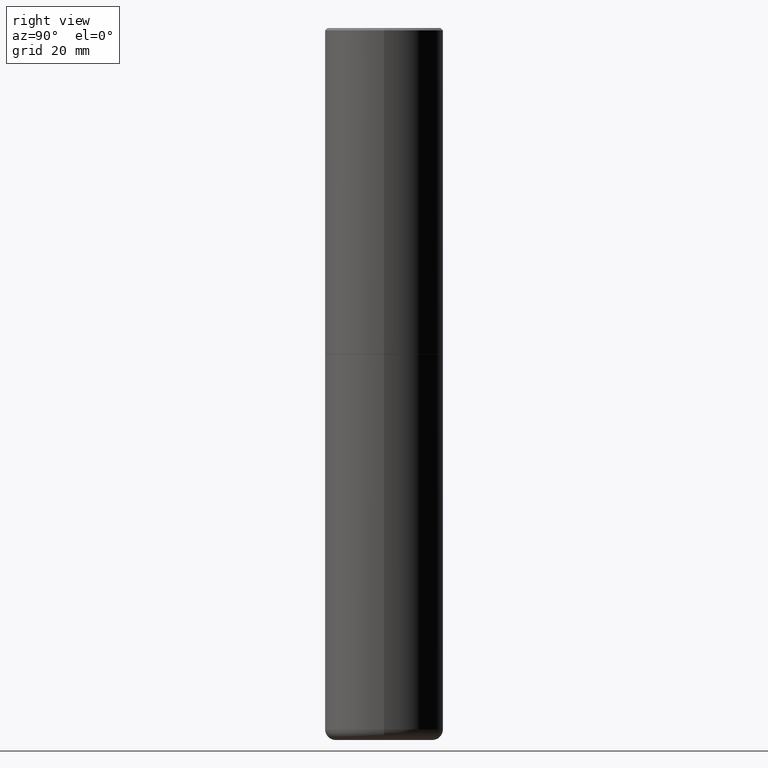
[diagram: clean part render]
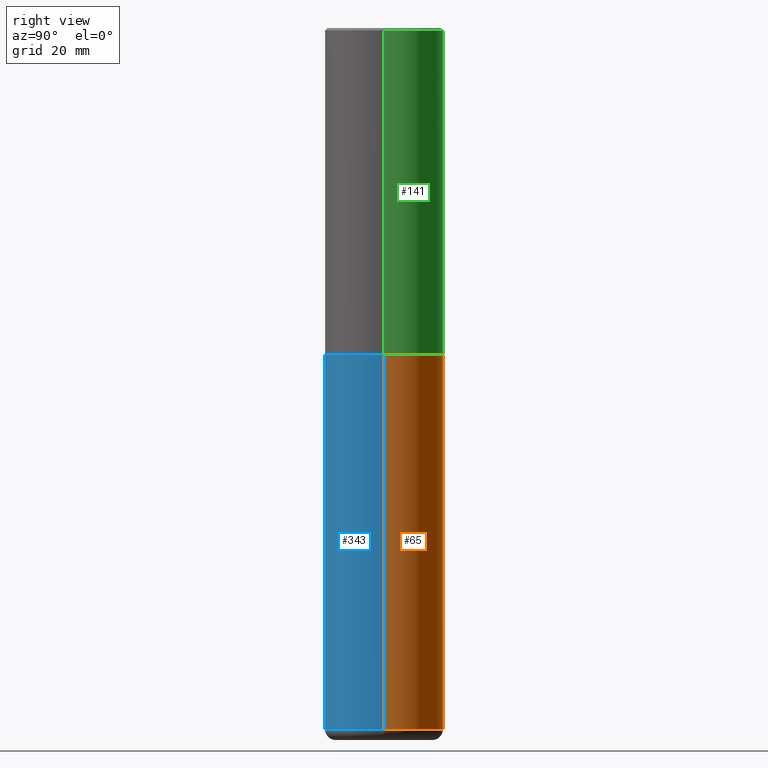
[diagram: same view with three faces highlighted in distinct colors, each labeled with its STEP entity id]
A machine part, right view with three faces highlighted in distinct colors.
Their STEP definitions:

[orange] entity #65 — the highlighted cylindrical surface (partial cylindrical patch) has radius 12.7 mm, axis along (-0, 0, 1).
#5 = VERTEX_POINT ( 'NONE', #353 ) ;
#9 = ORIENTED_EDGE ( 'NONE', *, *, #119, .F. ) ;
#12 = VERTEX_POINT ( 'NONE', #338 ) ;
#18 = CARTESIAN_POINT ( 'NONE',  ( 0.000000000000000000, 0.000000000000000000, 0.000000000000000000 ) ) ;
#20 = EDGE_CURVE ( 'NONE', #62, #12, #445, .T. ) ;
#25 = DIRECTION ( 'NONE',  ( -2.445468806185136877E-29, 3.491481338843145188E-15, 1.000000000000000000 ) ) ;
#33 = DIRECTION ( 'NONE',  ( 1.000000000000000000, -6.982962677686266711E-15, 0.000000000000000000 ) ) ;
#39 = ORIENTED_EDGE ( 'NONE', *, *, #20, .F. ) ;
#44 = CARTESIAN_POINT ( 'NONE',  ( 1.445272902499044541E-28, -2.063466667760496652E-14, -5.910003426924223646 ) ) ;
#62 = VERTEX_POINT ( 'NONE', #241 ) ;
#65 = ADVANCED_FACE ( 'NONE', ( #156 ), #471, .T. ) ;
#102 = VECTOR ( 'NONE', #25, 39.37007874015748143 ) ;
#119 = EDGE_CURVE ( 'NONE', #5, #62, #450, .T. ) ;
#126 = DIRECTION ( 'NONE',  ( 1.000000000000000000, -6.982962677686269077E-15, 0.000000000000000000 ) ) ;
#151 = AXIS2_PLACEMENT_3D ( 'NONE', #44, #323, #126 ) ;
#156 = FACE_OUTER_BOUND ( 'NONE', #315, .T. ) ;
#214 = DIRECTION ( 'NONE',  ( -2.445468806185136597E-29, 3.491481338843145583E-15, 1.000000000000000000 ) ) ;
#233 = CARTESIAN_POINT ( 'NONE',  ( 6.725039217009125641E-29, -9.601573681818653015E-15, -2.750000000000000444 ) ) ;
#241 = CARTESIAN_POINT ( 'NONE',  ( 0.5000000000000000000, -1.309305502066178637E-14, -2.750000000000000444 ) ) ;
#244 = ORIENTED_EDGE ( 'NONE', *, *, #267, .T. ) ;
#249 = CARTESIAN_POINT ( 'NONE',  ( -0.5000000000000001110, -1.156540650091130647E-14, -5.910003426924223646 ) ) ;
#255 = AXIS2_PLACEMENT_3D ( 'NONE', #233, #342, #33 ) ;
#260 = CARTESIAN_POINT ( 'NONE',  ( 0.5000000000000000000, -3.491481338843133355E-15, 2.438088387897967896E-29 ) ) ;
#267 = EDGE_CURVE ( 'NONE', #5, #279, #436, .T. ) ;
#268 = CARTESIAN_POINT ( 'NONE',  ( -0.5000000000000000000, 3.552713678800500929E-15, -2.459467545127452891E-29 ) ) ;
#279 = VERTEX_POINT ( 'NONE', #249 ) ;
#315 = EDGE_LOOP ( 'NONE', ( #244, #347, #39, #9 ) ) ;
#323 = DIRECTION ( 'NONE',  ( -2.445468806185136597E-29, 3.491481338843145583E-15, 1.000000000000000000 ) ) ;
#338 = CARTESIAN_POINT ( 'NONE',  ( -0.5000000000000000000, -1.156540650091130805E-14, -2.750000000000000444 ) ) ;
#342 = DIRECTION ( 'NONE',  ( -2.445468806185136597E-29, 3.491481338843145583E-15, 1.000000000000000000 ) ) ;
#347 = ORIENTED_EDGE ( 'NONE', *, *, #369, .T. ) ;
#353 = CARTESIAN_POINT ( 'NONE',  ( 0.5000000000000001110, -2.412614801644810303E-14, -5.910003426924223646 ) ) ;
#366 = DIRECTION ( 'NONE',  ( -2.445468806185136877E-29, 3.491481338843145188E-15, 1.000000000000000000 ) ) ;
#369 = EDGE_CURVE ( 'NONE', #279, #12, #458, .T. ) ;
#408 = DIRECTION ( 'NONE',  ( 1.000000000000000000, -6.982962677686266711E-15, 4.876176775795935793E-29 ) ) ;
#417 = VECTOR ( 'NONE', #366, 39.37007874015748143 ) ;
#436 = CIRCLE ( 'NONE', #151, 0.5000000000000001110 ) ;
#445 = CIRCLE ( 'NONE', #255, 0.5000000000000000000 ) ;
#450 = LINE ( 'NONE', #260, #417 ) ;
#454 = AXIS2_PLACEMENT_3D ( 'NONE', #18, #214, #408 ) ;
#458 = LINE ( 'NONE', #268, #102 ) ;
#471 = CYLINDRICAL_SURFACE ( 'NONE', #454, 0.5000000000000000000 ) ;

[blue] entity #343 — the highlighted cylindrical surface (partial cylindrical patch) has radius 12.7 mm, axis along (-0, 0, 1).
#5 = VERTEX_POINT ( 'NONE', #353 ) ;
#12 = VERTEX_POINT ( 'NONE', #338 ) ;
#25 = DIRECTION ( 'NONE',  ( -2.445468806185136877E-29, 3.491481338843145188E-15, 1.000000000000000000 ) ) ;
#32 = CIRCLE ( 'NONE', #456, 0.5000000000000001110 ) ;
#46 = CARTESIAN_POINT ( 'NONE',  ( 0.000000000000000000, 0.000000000000000000, 0.000000000000000000 ) ) ;
#62 = VERTEX_POINT ( 'NONE', #241 ) ;
#82 = DIRECTION ( 'NONE',  ( 1.000000000000000000, -6.982962677686269077E-15, 0.000000000000000000 ) ) ;
#102 = VECTOR ( 'NONE', #25, 39.37007874015748143 ) ;
#119 = EDGE_CURVE ( 'NONE', #5, #62, #450, .T. ) ;
#129 = DIRECTION ( 'NONE',  ( -2.445468806185136597E-29, 3.491481338843145583E-15, 1.000000000000000000 ) ) ;
#130 = ORIENTED_EDGE ( 'NONE', *, *, #369, .F. ) ;
#142 = CIRCLE ( 'NONE', #461, 0.5000000000000000000 ) ;
#157 = EDGE_LOOP ( 'NONE', ( #130, #469, #196, #444 ) ) ;
#196 = ORIENTED_EDGE ( 'NONE', *, *, #119, .T. ) ;
#205 = CARTESIAN_POINT ( 'NONE',  ( 6.725039217009125641E-29, -9.601573681818653015E-15, -2.750000000000000444 ) ) ;
#206 = CARTESIAN_POINT ( 'NONE',  ( 1.445272902499044541E-28, -2.063466667760496652E-14, -5.910003426924223646 ) ) ;
#210 = DIRECTION ( 'NONE',  ( -2.445468806185136597E-29, 3.491481338843145583E-15, 1.000000000000000000 ) ) ;
#230 = DIRECTION ( 'NONE',  ( 1.000000000000000000, -6.982962677686266711E-15, 4.876176775795935793E-29 ) ) ;
#241 = CARTESIAN_POINT ( 'NONE',  ( 0.5000000000000000000, -1.309305502066178637E-14, -2.750000000000000444 ) ) ;
#247 = CYLINDRICAL_SURFACE ( 'NONE', #328, 0.5000000000000000000 ) ;
#249 = CARTESIAN_POINT ( 'NONE',  ( -0.5000000000000001110, -1.156540650091130647E-14, -5.910003426924223646 ) ) ;
#260 = CARTESIAN_POINT ( 'NONE',  ( 0.5000000000000000000, -3.491481338843133355E-15, 2.438088387897967896E-29 ) ) ;
#268 = CARTESIAN_POINT ( 'NONE',  ( -0.5000000000000000000, 3.552713678800500929E-15, -2.459467545127452891E-29 ) ) ;
#279 = VERTEX_POINT ( 'NONE', #249 ) ;
#280 = DIRECTION ( 'NONE',  ( -2.445468806185136597E-29, 3.491481338843145583E-15, 1.000000000000000000 ) ) ;
#295 = EDGE_CURVE ( 'NONE', #279, #5, #32, .T. ) ;
#328 = AXIS2_PLACEMENT_3D ( 'NONE', #46, #210, #230 ) ;
#338 = CARTESIAN_POINT ( 'NONE',  ( -0.5000000000000000000, -1.156540650091130805E-14, -2.750000000000000444 ) ) ;
#341 = EDGE_CURVE ( 'NONE', #12, #62, #142, .T. ) ;
#343 = ADVANCED_FACE ( 'NONE', ( #438 ), #247, .T. ) ;
#353 = CARTESIAN_POINT ( 'NONE',  ( 0.5000000000000001110, -2.412614801644810303E-14, -5.910003426924223646 ) ) ;
#366 = DIRECTION ( 'NONE',  ( -2.445468806185136877E-29, 3.491481338843145188E-15, 1.000000000000000000 ) ) ;
#369 = EDGE_CURVE ( 'NONE', #279, #12, #458, .T. ) ;
#417 = VECTOR ( 'NONE', #366, 39.37007874015748143 ) ;
#438 = FACE_OUTER_BOUND ( 'NONE', #157, .T. ) ;
#444 = ORIENTED_EDGE ( 'NONE', *, *, #341, .F. ) ;
#450 = LINE ( 'NONE', #260, #417 ) ;
#456 = AXIS2_PLACEMENT_3D ( 'NONE', #206, #129, #82 ) ;
#458 = LINE ( 'NONE', #268, #102 ) ;
#461 = AXIS2_PLACEMENT_3D ( 'NONE', #205, #280, #470 ) ;
#469 = ORIENTED_EDGE ( 'NONE', *, *, #295, .T. ) ;
#470 = DIRECTION ( 'NONE',  ( 1.000000000000000000, -6.982962677686266711E-15, 0.000000000000000000 ) ) ;

[green] entity #141 — the highlighted cylindrical surface (partial cylindrical patch) has radius 12.7 mm, axis along (-0, 0, 1).
#55 = DIRECTION ( 'NONE',  ( -2.445468806185136597E-29, 3.491481338843145583E-15, 1.000000000000000000 ) ) ;
#58 = CARTESIAN_POINT ( 'NONE',  ( 0.4999999999999995004, -3.491481338843130200E-15, 2.438088387897965374E-29 ) ) ;
#59 = CARTESIAN_POINT ( 'NONE',  ( 0.000000000000000000, 0.000000000000000000, 0.000000000000000000 ) ) ;
#74 = CIRCLE ( 'NONE', #432, 0.4999999999999990563 ) ;
#77 = CIRCLE ( 'NONE', #293, 0.5000000000000000000 ) ;
#79 = ORIENTED_EDGE ( 'NONE', *, *, #287, .T. ) ;
#85 = ORIENTED_EDGE ( 'NONE', *, *, #335, .T. ) ;
#99 = DIRECTION ( 'NONE',  ( 1.000000000000000000, -6.982962677686267499E-15, 4.876176775795935793E-29 ) ) ;
#112 = EDGE_LOOP ( 'NONE', ( #79, #85, #282, #422 ) ) ;
#131 = CYLINDRICAL_SURFACE ( 'NONE', #305, 0.4999999999999995004 ) ;
#141 = ADVANCED_FACE ( 'NONE', ( #322 ), #131, .T. ) ;
#164 = DIRECTION ( 'NONE',  ( -2.445468806185136877E-29, 3.491481338843145188E-15, 1.000000000000000000 ) ) ;
#192 = VECTOR ( 'NONE', #283, 39.37007874015748143 ) ;
#200 = EDGE_CURVE ( 'NONE', #437, #310, #74, .T. ) ;
#202 = CARTESIAN_POINT ( 'NONE',  ( -0.5000000000000000000, -1.281242234827831779E-15, -2.749000000000000554 ) ) ;
#215 = DIRECTION ( 'NONE',  ( 1.000000000000000000, -6.982962677686266711E-15, 0.000000000000000000 ) ) ;
#238 = DIRECTION ( 'NONE',  ( -2.445468806185136597E-29, 3.491481338843145583E-15, 1.000000000000000000 ) ) ;
#253 = CARTESIAN_POINT ( 'NONE',  ( 4.890937612370318701E-31, -6.982962677686356937E-17, -0.02000000000000018777 ) ) ;
#282 = ORIENTED_EDGE ( 'NONE', *, *, #200, .F. ) ;
#283 = DIRECTION ( 'NONE',  ( -2.445468806185136877E-29, 3.491481338843145188E-15, 1.000000000000000000 ) ) ;
#287 = EDGE_CURVE ( 'NONE', #427, #466, #77, .T. ) ;
#293 = AXIS2_PLACEMENT_3D ( 'NONE', #473, #238, #477 ) ;
#304 = CARTESIAN_POINT ( 'NONE',  ( 0.4999999999999990563, -3.500078625662622374E-15, -0.02000000000000018777 ) ) ;
#305 = AXIS2_PLACEMENT_3D ( 'NONE', #59, #446, #99 ) ;
#310 = VERTEX_POINT ( 'NONE', #465 ) ;
#322 = FACE_OUTER_BOUND ( 'NONE', #112, .T. ) ;
#335 = EDGE_CURVE ( 'NONE', #466, #310, #399, .T. ) ;
#340 = CARTESIAN_POINT ( 'NONE',  ( 0.5000000000000000000, -1.308956353932294336E-14, -2.749000000000000554 ) ) ;
#351 = CARTESIAN_POINT ( 'NONE',  ( -0.4999999999999995004, 3.552713678800497379E-15, -2.459467545127450649E-29 ) ) ;
#368 = VECTOR ( 'NONE', #164, 39.37007874015748143 ) ;
#399 = LINE ( 'NONE', #351, #368 ) ;
#413 = LINE ( 'NONE', #58, #192 ) ;
#422 = ORIENTED_EDGE ( 'NONE', *, *, #443, .F. ) ;
#427 = VERTEX_POINT ( 'NONE', #340 ) ;
#432 = AXIS2_PLACEMENT_3D ( 'NONE', #253, #55, #215 ) ;
#437 = VERTEX_POINT ( 'NONE', #304 ) ;
#443 = EDGE_CURVE ( 'NONE', #427, #437, #413, .T. ) ;
#446 = DIRECTION ( 'NONE',  ( -2.445468806185136597E-29, 3.491481338843145583E-15, 1.000000000000000000 ) ) ;
#465 = CARTESIAN_POINT ( 'NONE',  ( -0.4999999999999990563, 3.421651712066263352E-15, -0.02000000000000018777 ) ) ;
#466 = VERTEX_POINT ( 'NONE', #202 ) ;
#473 = CARTESIAN_POINT ( 'NONE',  ( 6.722593748202942280E-29, -9.598082200479810007E-15, -2.749000000000000554 ) ) ;
#477 = DIRECTION ( 'NONE',  ( 1.000000000000000000, -6.982962677686266711E-15, 0.000000000000000000 ) ) ;